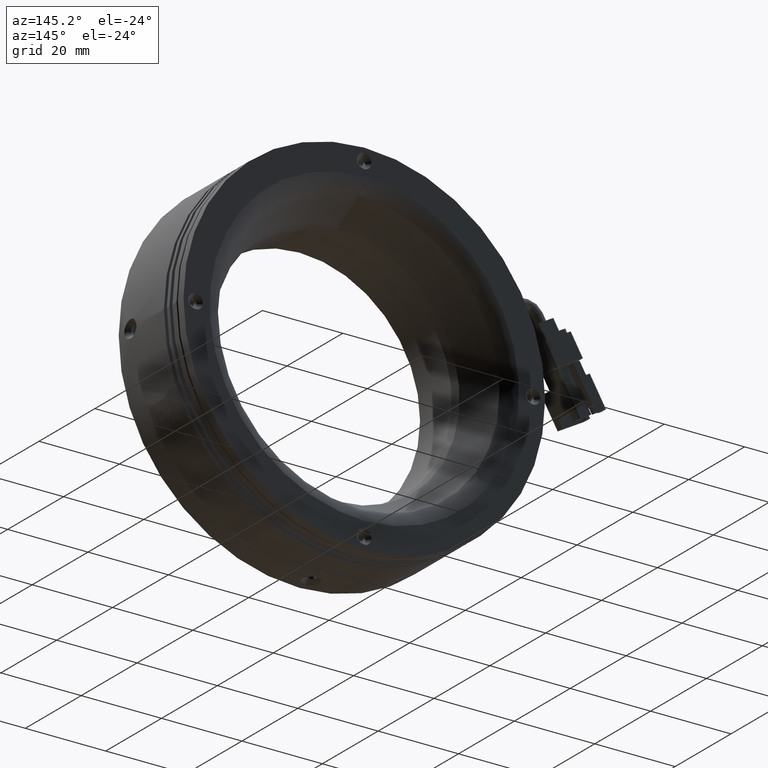
[diagram: clean part render]
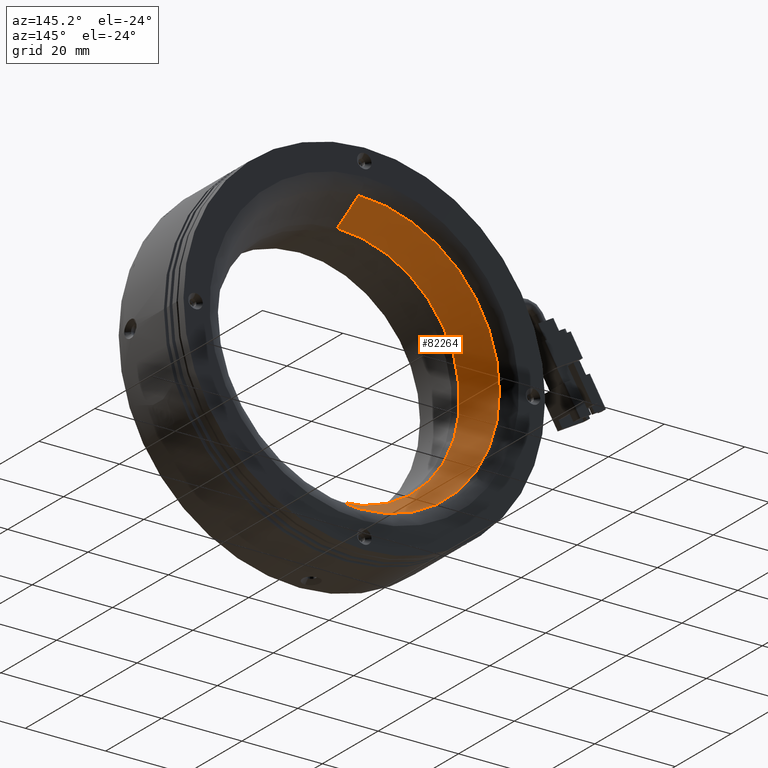
[diagram: same view with one face highlighted and labeled with its STEP entity id]
A machine part, auxiliary view. The second image highlights one B-rep face of the part: STEP entity #82264.
In plain terms, the highlighted conical surface has half-angle 30 deg.
Its self-contained STEP definition (entity closure, byte-faithful):
#3679 = DIRECTION ( 'NONE',  ( 0.0000000000000000000, -1.136186303813987500E-016, 1.000000000000000000 ) ) ;
#8171 = CARTESIAN_POINT ( 'NONE',  ( -8.623327525382887200, 26.97360433553889400, -35.03589838486223600 ) ) ;
#8416 = DIRECTION ( 'NONE',  ( 0.0000000000000000000, -1.000000000000000000, 0.0000000000000000000 ) ) ;
#18777 = CARTESIAN_POINT ( 'NONE',  ( -8.623327525382890700, 19.17937570147887500, 30.53589838486225000 ) ) ;
#20469 = DIRECTION ( 'NONE',  ( 0.0000000000000000000, 0.0000000000000000000, 1.000000000000000000 ) ) ;
#22767 = FACE_OUTER_BOUND ( 'NONE', #69389, .T. ) ;
#23502 = LINE ( 'NONE', #97973, #114318 ) ;
#26014 = EDGE_CURVE ( 'NONE', #41662, #116417, #54805, .T. ) ;
#33639 = AXIS2_PLACEMENT_3D ( 'NONE', #78353, #107200, #20469 ) ;
#36814 = EDGE_CURVE ( 'NONE', #41662, #70453, #65995, .T. ) ;
#41662 = VERTEX_POINT ( 'NONE', #106527 ) ;
#41726 = EDGE_CURVE ( 'NONE', #116417, #114910, #23502, .T. ) ;
#49762 = DIRECTION ( 'NONE',  ( 0.0000000000000000000, 0.8660254037844404800, 0.4999999999999967800 ) ) ;
#51640 = ORIENTED_EDGE ( 'NONE', *, *, #41726, .F. ) ;
#54805 = CIRCLE ( 'NONE', #116918, 30.53589838486223900 ) ;
#55896 = ORIENTED_EDGE ( 'NONE', *, *, #73407, .F. ) ;
#56388 = DIRECTION ( 'NONE',  ( 6.123233995736726600E-017, 0.8660254037844404800, -0.4999999999999967800 ) ) ;
#58515 = ORIENTED_EDGE ( 'NONE', *, *, #26014, .F. ) ;
#61603 = DIRECTION ( 'NONE',  ( -0.0000000000000000000, 1.000000000000000000, -0.0000000000000000000 ) ) ;
#62012 = CONICAL_SURFACE ( 'NONE', #33639, 35.03589838486223600, 0.5235987755982951500 ) ;
#62904 = VECTOR ( 'NONE', #56388, 1000.000000000000000 ) ;
#64521 = ORIENTED_EDGE ( 'NONE', *, *, #36814, .T. ) ;
#65995 = LINE ( 'NONE', #8171, #62904 ) ;
#66413 = CARTESIAN_POINT ( 'NONE',  ( -8.623327525382890700, 26.97360433553889400, 1.040834085586084300E-014 ) ) ;
#67114 = AXIS2_PLACEMENT_3D ( 'NONE', #66413, #8416, #76071 ) ;
#69389 = EDGE_LOOP ( 'NONE', ( #58515, #64521, #55896, #51640 ) ) ;
#70453 = VERTEX_POINT ( 'NONE', #74402 ) ;
#73407 = EDGE_CURVE ( 'NONE', #114910, #70453, #75826, .T. ) ;
#74402 = CARTESIAN_POINT ( 'NONE',  ( -8.623327525382887200, 26.97360433553889400, -35.03589838486223600 ) ) ;
#75826 = CIRCLE ( 'NONE', #67114, 35.03589838486223600 ) ;
#76071 = DIRECTION ( 'NONE',  ( 0.0000000000000000000, 0.0000000000000000000, 1.000000000000000000 ) ) ;
#78353 = CARTESIAN_POINT ( 'NONE',  ( -8.623327525382890700, 26.97360433553889400, 1.040834085586084300E-014 ) ) ;
#82264 = ADVANCED_FACE ( 'NONE', ( #22767 ), #62012, .F. ) ;
#97973 = CARTESIAN_POINT ( 'NONE',  ( -8.623327525382890700, 26.97360433553889400, 35.03589838486225000 ) ) ;
#106527 = CARTESIAN_POINT ( 'NONE',  ( -8.623327525382887200, 19.17937570147887900, -30.53589838486222900 ) ) ;
#107200 = DIRECTION ( 'NONE',  ( 0.0000000000000000000, 1.000000000000000000, 0.0000000000000000000 ) ) ;
#114318 = VECTOR ( 'NONE', #49762, 1000.000000000000000 ) ;
#114910 = VERTEX_POINT ( 'NONE', #116052 ) ;
#116052 = CARTESIAN_POINT ( 'NONE',  ( -8.623327525382890700, 26.97360433553889400, 35.03589838486225000 ) ) ;
#116417 = VERTEX_POINT ( 'NONE', #18777 ) ;
#116918 = AXIS2_PLACEMENT_3D ( 'NONE', #119651, #61603, #3679 ) ;
#119651 = CARTESIAN_POINT ( 'NONE',  ( -8.623327525382890700, 19.17937570147887900, 1.040834085586084300E-014 ) ) ;